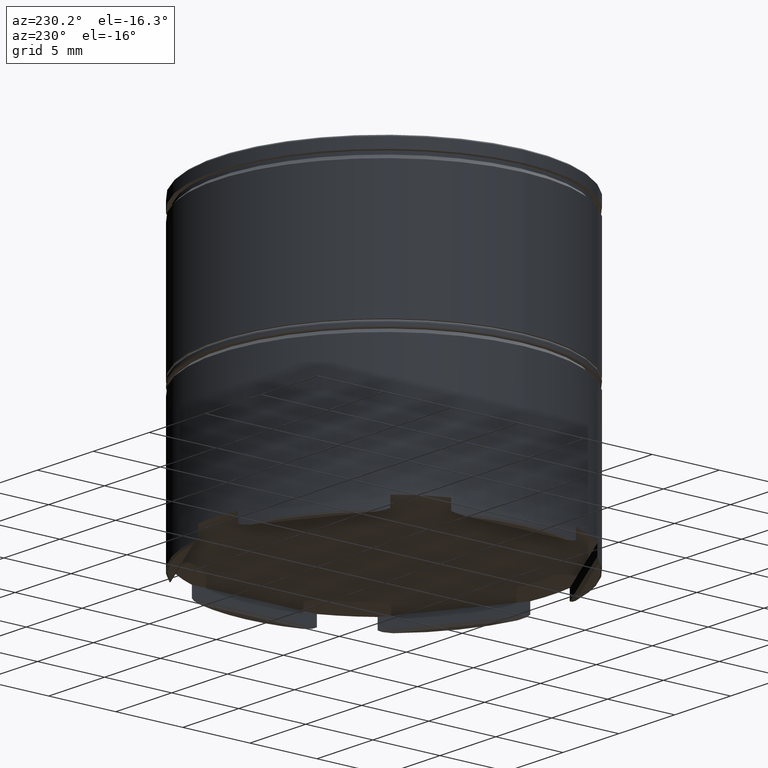
[diagram: clean part render]
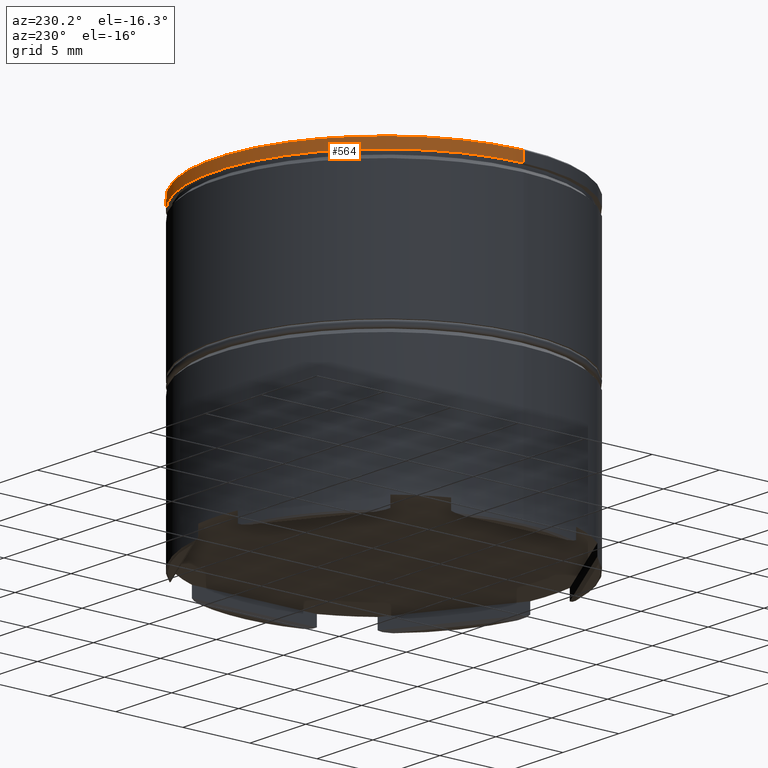
[diagram: same view with one face highlighted and labeled with its STEP entity id]
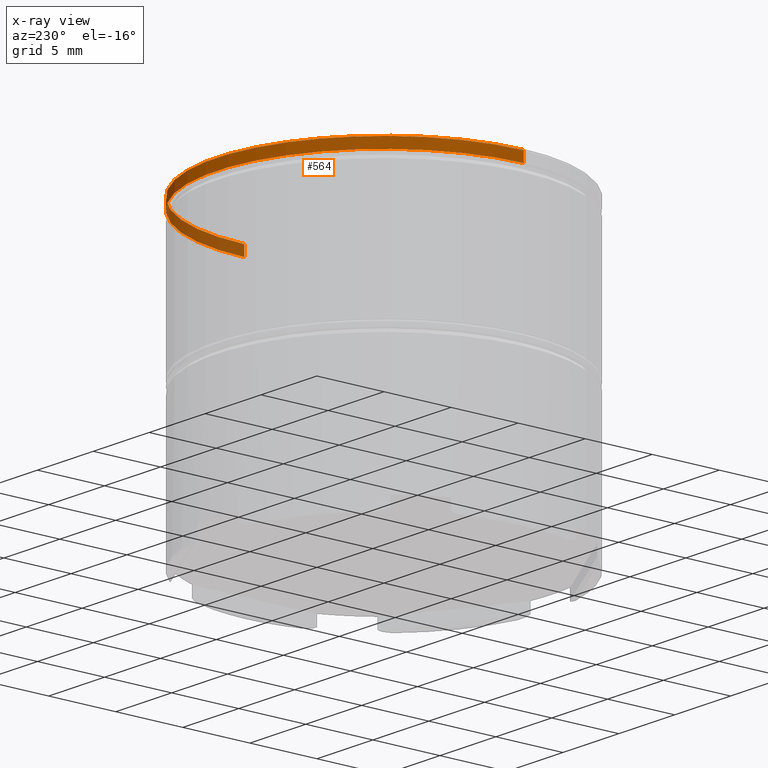
[diagram: x-ray of the same camera — body ghosted, the highlighted face saturated]
A machine part, auxiliary view. The second image highlights one B-rep face of the part: STEP entity #564.
The next image is the same camera in x-ray: the body ghosted, the highlighted face saturated — about 17% of this face is hidden behind the body in this view.
In plain terms, the highlighted cylindrical surface (partial cylindrical patch) has radius 12.5 mm, axis along (-0, -0, 1).
Its self-contained STEP definition (entity closure, byte-faithful):
#92 = DIRECTION ( 'NONE',  ( -0.000000000000000000, -0.000000000000000000, 1.000000000000000000 ) ) ;
#164 = ORIENTED_EDGE ( 'NONE', *, *, #865, .F. ) ;
#165 = ORIENTED_EDGE ( 'NONE', *, *, #1199, .T. ) ;
#278 = AXIS2_PLACEMENT_3D ( 'NONE', #1060, #809, #293 ) ;
#293 = DIRECTION ( 'NONE',  ( 1.000000000000000000, 0.000000000000000000, 0.000000000000000000 ) ) ;
#357 = DIRECTION ( 'NONE',  ( 0.000000000000000000, 0.000000000000000000, -1.000000000000000000 ) ) ;
#392 = CARTESIAN_POINT ( 'NONE',  ( 0.000000000000000000, 0.000000000000000000, -0.1000000000000045991 ) ) ;
#422 = CYLINDRICAL_SURFACE ( 'NONE', #278, 12.50000000000000000 ) ;
#447 = CARTESIAN_POINT ( 'NONE',  ( -12.50000000000000000, 1.530808498934191521E-15, 0.000000000000000000 ) ) ;
#449 = EDGE_LOOP ( 'NONE', ( #165, #1598, #1058, #164 ) ) ;
#561 = DIRECTION ( 'NONE',  ( -0.000000000000000000, -0.000000000000000000, 1.000000000000000000 ) ) ;
#564 = ADVANCED_FACE ( 'NONE', ( #791 ), #422, .T. ) ;
#592 = AXIS2_PLACEMENT_3D ( 'NONE', #938, #561, #1048 ) ;
#656 = VERTEX_POINT ( 'NONE', #1626 ) ;
#768 = VERTEX_POINT ( 'NONE', #1504 ) ;
#778 = EDGE_CURVE ( 'NONE', #1027, #768, #1100, .T. ) ;
#791 = FACE_OUTER_BOUND ( 'NONE', #449, .T. ) ;
#809 = DIRECTION ( 'NONE',  ( -0.000000000000000000, -0.000000000000000000, 1.000000000000000000 ) ) ;
#849 = CARTESIAN_POINT ( 'NONE',  ( -12.50000000000000000, 1.530808498934191521E-15, -0.1000000000000045991 ) ) ;
#865 = EDGE_CURVE ( 'NONE', #1104, #768, #1318, .T. ) ;
#898 = EDGE_CURVE ( 'NONE', #656, #1027, #1211, .T. ) ;
#938 = CARTESIAN_POINT ( 'NONE',  ( 0.000000000000000000, 0.000000000000000000, -0.8749999999999998890 ) ) ;
#970 = VECTOR ( 'NONE', #1059, 1000.000000000000000 ) ;
#1012 = DIRECTION ( 'NONE',  ( 1.000000000000000000, 0.000000000000000000, 0.000000000000000000 ) ) ;
#1027 = VERTEX_POINT ( 'NONE', #849 ) ;
#1041 = CARTESIAN_POINT ( 'NONE',  ( 12.50000000000000000, 0.000000000000000000, 0.000000000000000000 ) ) ;
#1048 = DIRECTION ( 'NONE',  ( 1.000000000000000000, 0.000000000000000000, 0.000000000000000000 ) ) ;
#1058 = ORIENTED_EDGE ( 'NONE', *, *, #778, .T. ) ;
#1059 = DIRECTION ( 'NONE',  ( -0.000000000000000000, -0.000000000000000000, 1.000000000000000000 ) ) ;
#1060 = CARTESIAN_POINT ( 'NONE',  ( 0.000000000000000000, 0.000000000000000000, 0.000000000000000000 ) ) ;
#1100 = CIRCLE ( 'NONE', #1349, 12.50000000000000000 ) ;
#1104 = VERTEX_POINT ( 'NONE', #1156 ) ;
#1156 = CARTESIAN_POINT ( 'NONE',  ( 12.50000000000000000, 0.000000000000000000, -0.8749999999999998890 ) ) ;
#1199 = EDGE_CURVE ( 'NONE', #1104, #656, #1325, .T. ) ;
#1211 = LINE ( 'NONE', #447, #1559 ) ;
#1318 = LINE ( 'NONE', #1041, #970 ) ;
#1325 = CIRCLE ( 'NONE', #592, 12.50000000000000000 ) ;
#1349 = AXIS2_PLACEMENT_3D ( 'NONE', #392, #357, #1012 ) ;
#1504 = CARTESIAN_POINT ( 'NONE',  ( 12.50000000000000000, 0.000000000000000000, -0.1000000000000045991 ) ) ;
#1559 = VECTOR ( 'NONE', #92, 1000.000000000000000 ) ;
#1598 = ORIENTED_EDGE ( 'NONE', *, *, #898, .T. ) ;
#1626 = CARTESIAN_POINT ( 'NONE',  ( -12.50000000000000000, 1.530808498934191521E-15, -0.8749999999999998890 ) ) ;